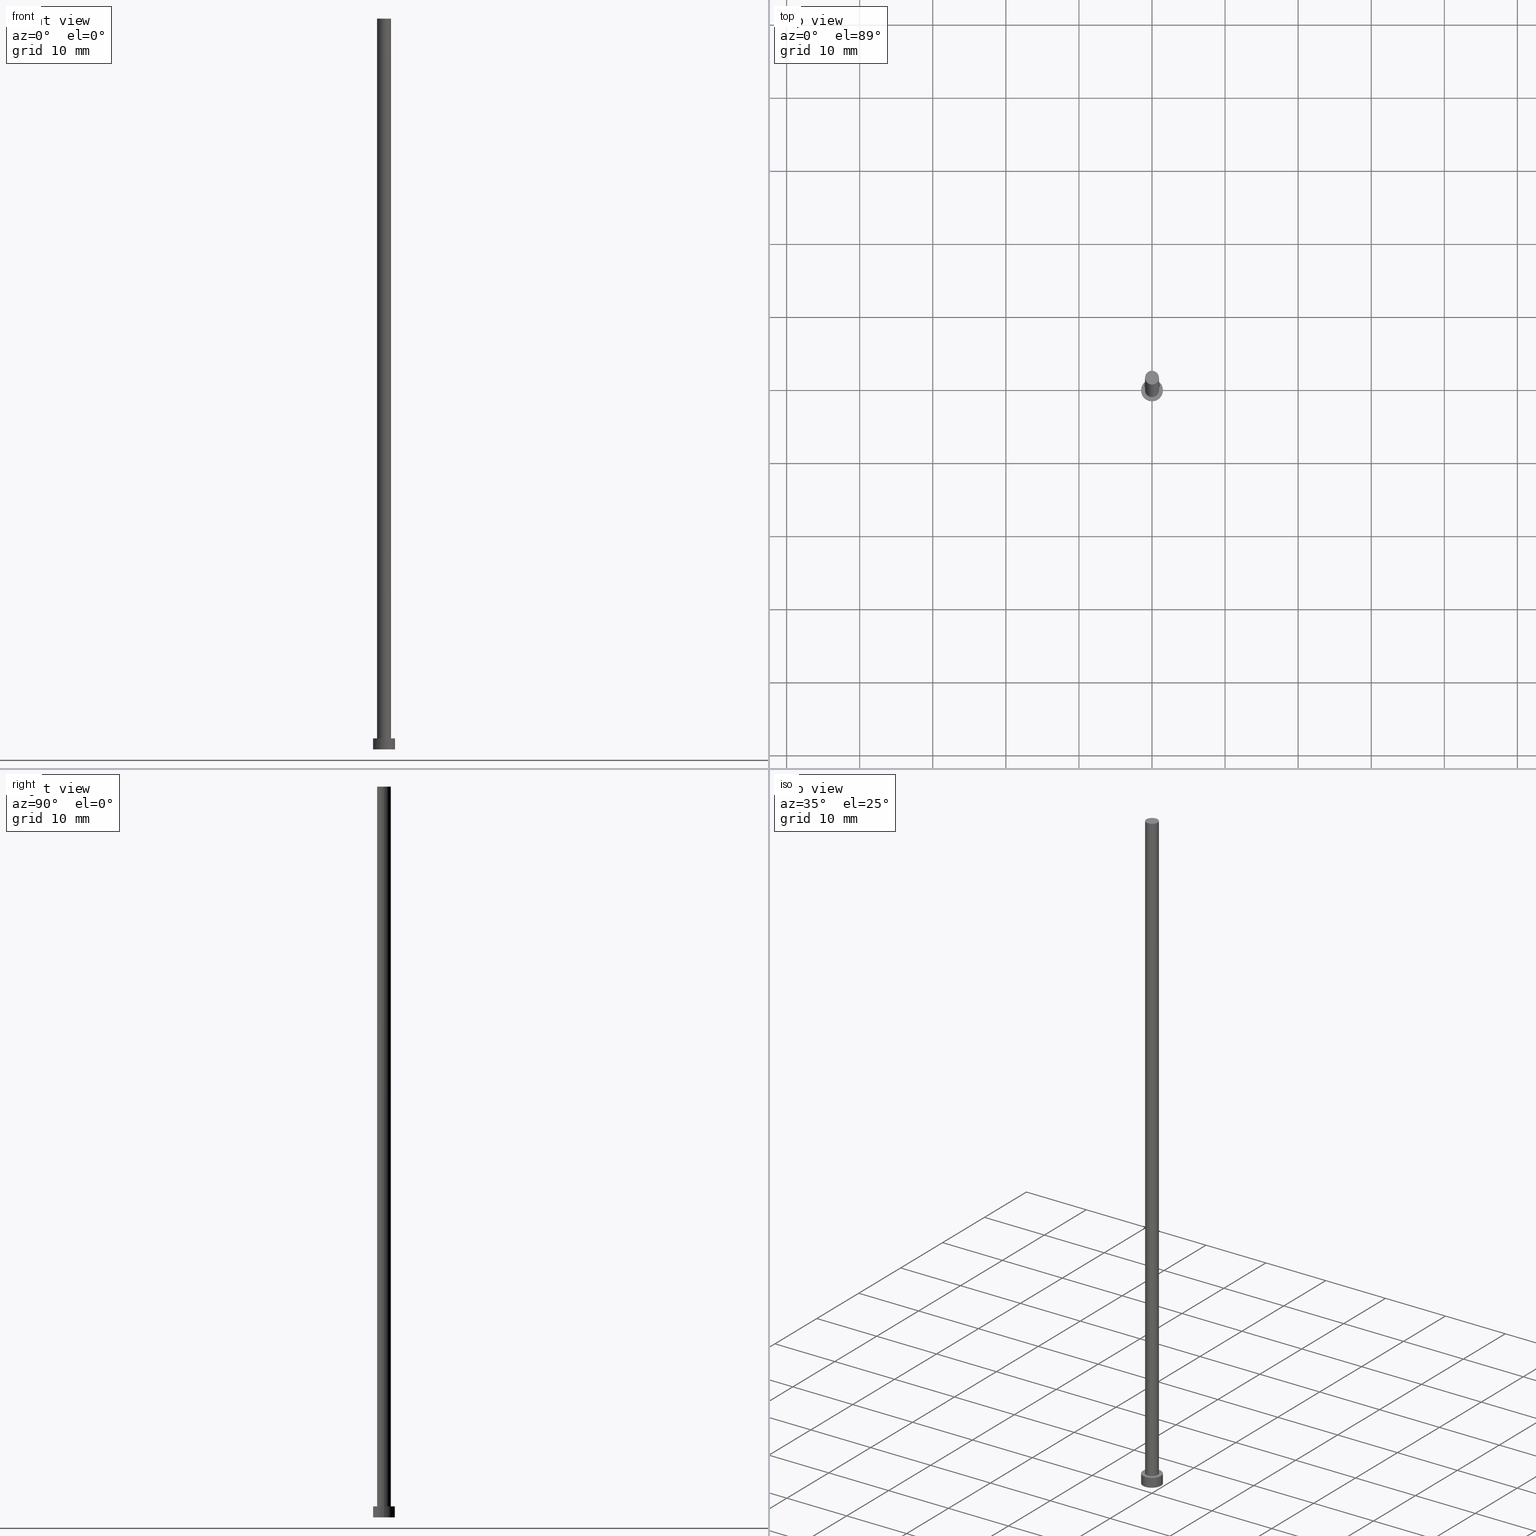
[diagram: canonical four-view strip — front | top / right | iso, engineering-drawing reading convention]
A machine part, canonical four-view strip (front | top / right | iso — engineering-drawing reading convention). The complete STEP part file that produces these views, byte-faithful:
ISO-10303-21;
HEADER;
FILE_DESCRIPTION (( 'STEP AP203' ),
    '1' );
FILE_NAME ('63f2.STEP',
    '2023-02-13T14:56:54',
    ( '' ),
    ( '' ),
    'SwSTEP 2.0',
    'SolidWorks 2019',
    '' );
FILE_SCHEMA (( 'CONFIG_CONTROL_DESIGN' ));
ENDSEC;

DATA;
#1 = SECURITY_CLASSIFICATION ( '', '', #156 ) ;
#2 = EDGE_CURVE ( 'NONE', #190, #58, #90, .T. ) ;
#3 = EDGE_CURVE ( 'NONE', #33, #172, #70, .T. ) ;
#4 = EDGE_CURVE ( 'NONE', #244, #190, #74, .T. ) ;
#5 = LOCAL_TIME ( 15, 56, 54.00000000000000000, #210 ) ;
#6 = AXIS2_PLACEMENT_3D ( 'NONE', #205, #211, #49 ) ;
#7 = CARTESIAN_POINT ( 'NONE',  ( -0.9499999999999999556, 0.000000000000000000, 1.500000000000000000 ) ) ;
#8 = ORIENTED_EDGE ( 'NONE', *, *, #3, .F. ) ;
#9 = EDGE_LOOP ( 'NONE', ( #77, #249, #36, #181 ) ) ;
#10 = APPROVAL_DATE_TIME ( #115, #110 ) ;
#11 = DIRECTION ( 'NONE',  ( -1.000000000000000000, 0.000000000000000000, 0.000000000000000000 ) ) ;
#12 = LOCAL_TIME ( 15, 56, 54.00000000000000000, #17 ) ;
#13 =( NAMED_UNIT ( * ) PLANE_ANGLE_UNIT ( ) SI_UNIT ( $, .RADIAN. ) );
#14 = DIRECTION ( 'NONE',  ( -0.000000000000000000, -0.000000000000000000, -1.000000000000000000 ) ) ;
#15 = ORIENTED_EDGE ( 'NONE', *, *, #2, .T. ) ;
#16 = FACE_OUTER_BOUND ( 'NONE', #9, .T. ) ;
#17 = COORDINATED_UNIVERSAL_TIME_OFFSET ( 1, 0, .AHEAD. ) ;
#18 = APPROVAL_ROLE ( '' ) ;
#19 = PLANE ( 'NONE',  #223 ) ;
#20 = VERTEX_POINT ( 'NONE', #7 ) ;
#21 = FACE_OUTER_BOUND ( 'NONE', #241, .T. ) ;
#22 = APPROVAL_STATUS ( 'not_yet_approved' ) ;
#23 = CALENDAR_DATE ( 2023, 13, 2 ) ;
#24 = COORDINATED_UNIVERSAL_TIME_OFFSET ( 1, 0, .AHEAD. ) ;
#25 = LINE ( 'NONE', #157, #30 ) ;
#26 = SHAPE_DEFINITION_REPRESENTATION ( #206, #54 ) ;
#27 = ORGANIZATION ( 'NEUR�EN�', 'NEUR�EN�', '' ) ;
#28 = DIRECTION ( 'NONE',  ( 0.000000000000000000, 0.000000000000000000, 1.000000000000000000 ) ) ;
#29 = ADVANCED_FACE ( 'NONE', ( #34 ), #97, .T. ) ;
#30 = VECTOR ( 'NONE', #175, 1000.000000000000000 ) ;
#31 = ADVANCED_FACE ( 'NONE', ( #116 ), #135, .T. ) ;
#32 = AXIS2_PLACEMENT_3D ( 'NONE', #89, #101, #85 ) ;
#33 = VERTEX_POINT ( 'NONE', #72 ) ;
#34 = FACE_OUTER_BOUND ( 'NONE', #153, .T. ) ;
#35 = PERSON_AND_ORGANIZATION_ROLE ( 'design_supplier' ) ;
#36 = ORIENTED_EDGE ( 'NONE', *, *, #162, .T. ) ;
#37 = DIRECTION ( 'NONE',  ( 1.000000000000000000, 0.000000000000000000, 0.000000000000000000 ) ) ;
#38 = DATE_AND_TIME ( #23, #229 ) ;
#39 = CIRCLE ( 'NONE', #240, 1.500000000000000222 ) ;
#40 = VERTEX_POINT ( 'NONE', #149 ) ;
#41 = DIRECTION ( 'NONE',  ( 0.000000000000000000, 0.000000000000000000, 1.000000000000000000 ) ) ;
#42 = CC_DESIGN_APPROVAL ( #46, ( #1 ) ) ;
#43 = ORIENTED_EDGE ( 'NONE', *, *, #59, .F. ) ;
#44 = APPROVAL_STATUS ( 'not_yet_approved' ) ;
#45 = DIRECTION ( 'NONE',  ( 1.000000000000000000, 0.000000000000000000, 0.000000000000000000 ) ) ;
#46 = APPROVAL ( #22, 'NEUR�EN�' ) ;
#47 = PERSON_AND_ORGANIZATION_ROLE ( 'design_owner' ) ;
#48 = DIRECTION ( 'NONE',  ( 1.000000000000000000, 0.000000000000000000, -0.000000000000000000 ) ) ;
#49 = DIRECTION ( 'NONE',  ( 1.000000000000000000, 0.000000000000000000, 0.000000000000000000 ) ) ;
#50 = APPROVAL_STATUS ( 'not_yet_approved' ) ;
#51 = EDGE_CURVE ( 'NONE', #190, #244, #235, .T. ) ;
#52 = DIRECTION ( 'NONE',  ( -0.000000000000000000, -0.000000000000000000, -1.000000000000000000 ) ) ;
#53 = CIRCLE ( 'NONE', #73, 1.500000000000000222 ) ;
#54 = ADVANCED_BREP_SHAPE_REPRESENTATION ( '63f2', ( #95, #140 ), #173 ) ;
#55 = EDGE_CURVE ( 'NONE', #20, #58, #151, .T. ) ;
#56 = AXIS2_PLACEMENT_3D ( 'NONE', #177, #230, #45 ) ;
#57 = ORIENTED_EDGE ( 'NONE', *, *, #51, .F. ) ;
#58 = VERTEX_POINT ( 'NONE', #120 ) ;
#59 = EDGE_CURVE ( 'NONE', #58, #20, #219, .T. ) ;
#60 = DIRECTION ( 'NONE',  ( 0.000000000000000000, 0.000000000000000000, 1.000000000000000000 ) ) ;
#61 = DATE_AND_TIME ( #80, #152 ) ;
#62 = CARTESIAN_POINT ( 'NONE',  ( 0.9499999999999999556, 1.163414459189985682E-16, 100.0000000000000000 ) ) ;
#63 = PERSON_AND_ORGANIZATION ( #204, #27 ) ;
#64 = CARTESIAN_POINT ( 'NONE',  ( 0.000000000000000000, 0.000000000000000000, 0.000000000000000000 ) ) ;
#65 = DIRECTION ( 'NONE',  ( 0.000000000000000000, 0.000000000000000000, 1.000000000000000000 ) ) ;
#66 = CC_DESIGN_PERSON_AND_ORGANIZATION_ASSIGNMENT ( #63, #47, ( #221 ) ) ;
#67 =( NAMED_UNIT ( * ) SI_UNIT ( $, .STERADIAN. ) SOLID_ANGLE_UNIT ( ) );
#68 = CARTESIAN_POINT ( 'NONE',  ( -1.500000000000000222, 0.000000000000000000, 1.500000000000000000 ) ) ;
#69 = AXIS2_PLACEMENT_3D ( 'NONE', #76, #192, #11 ) ;
#70 = LINE ( 'NONE', #213, #203 ) ;
#71 = CARTESIAN_POINT ( 'NONE',  ( 0.9499999999999999556, 1.163414459189985682E-16, 100.0000000000000000 ) ) ;
#72 = CARTESIAN_POINT ( 'NONE',  ( 1.500000000000000222, 1.836970198721030181E-16, 1.500000000000000000 ) ) ;
#73 = AXIS2_PLACEMENT_3D ( 'NONE', #117, #228, #195 ) ;
#74 = CIRCLE ( 'NONE', #91, 0.9499999999999999556 ) ;
#75 = APPLICATION_CONTEXT ( 'configuration controlled 3d designs of mechanical parts and assemblies' ) ;
#76 = CARTESIAN_POINT ( 'NONE',  ( 0.000000000000000000, 0.000000000000000000, 1.500000000000000000 ) ) ;
#77 = ORIENTED_EDGE ( 'NONE', *, *, #2, .F. ) ;
#78 = ORIENTED_EDGE ( 'NONE', *, *, #3, .T. ) ;
#79 = FACE_OUTER_BOUND ( 'NONE', #134, .T. ) ;
#80 = CALENDAR_DATE ( 2023, 13, 2 ) ;
#81 = ORIENTED_EDGE ( 'NONE', *, *, #150, .F. ) ;
#82 = DIRECTION ( 'NONE',  ( -0.000000000000000000, -0.000000000000000000, -1.000000000000000000 ) ) ;
#83 = LOCAL_TIME ( 15, 56, 54.00000000000000000, #24 ) ;
#84 = EDGE_CURVE ( 'NONE', #232, #172, #133, .T. ) ;
#85 = DIRECTION ( 'NONE',  ( 1.000000000000000000, 0.000000000000000000, 0.000000000000000000 ) ) ;
#86 = PERSON_AND_ORGANIZATION ( #204, #27 ) ;
#87 = DIRECTION ( 'NONE',  ( -0.000000000000000000, -0.000000000000000000, -1.000000000000000000 ) ) ;
#88 = APPLICATION_PROTOCOL_DEFINITION ( 'international standard', 'config_control_design', 1994, #238 ) ;
#89 = CARTESIAN_POINT ( 'NONE',  ( 0.000000000000000000, 0.000000000000000000, 1.500000000000000000 ) ) ;
#90 = LINE ( 'NONE', #71, #174 ) ;
#91 = AXIS2_PLACEMENT_3D ( 'NONE', #234, #148, #217 ) ;
#92 = APPROVAL_PERSON_ORGANIZATION ( #161, #110, #141 ) ;
#93 = CALENDAR_DATE ( 2023, 13, 2 ) ;
#94 = ORIENTED_EDGE ( 'NONE', *, *, #169, .F. ) ;
#95 = MANIFOLD_SOLID_BREP ( 'P�idat vysunut�m3', #158 ) ;
#96 = PRODUCT_DEFINITION_FORMATION_WITH_SPECIFIED_SOURCE ( 'LIBOVOLN�', '', #221, .NOT_KNOWN. ) ;
#97 = CYLINDRICAL_SURFACE ( 'NONE', #250, 0.9499999999999999556 ) ;
#98 = EDGE_LOOP ( 'NONE', ( #166, #43 ) ) ;
#99 = PERSON_AND_ORGANIZATION_ROLE ( 'classification_officer' ) ;
#100 = ORIENTED_EDGE ( 'NONE', *, *, #162, .F. ) ;
#101 = DIRECTION ( 'NONE',  ( 0.000000000000000000, 0.000000000000000000, 1.000000000000000000 ) ) ;
#102 = ADVANCED_FACE ( 'NONE', ( #226 ), #19, .F. ) ;
#103 = CARTESIAN_POINT ( 'NONE',  ( 0.000000000000000000, 0.000000000000000000, 100.0000000000000000 ) ) ;
#104 = FACE_OUTER_BOUND ( 'NONE', #136, .T. ) ;
#105 = AXIS2_PLACEMENT_3D ( 'NONE', #168, #28, #170 ) ;
#106 = DIRECTION ( 'NONE',  ( 0.000000000000000000, 0.000000000000000000, 1.000000000000000000 ) ) ;
#107 = ADVANCED_FACE ( 'NONE', ( #104 ), #202, .T. ) ;
#108 = PERSON_AND_ORGANIZATION_ROLE ( 'creator' ) ;
#109 = ADVANCED_FACE ( 'NONE', ( #214, #79 ), #231, .T. ) ;
#110 = APPROVAL ( #44, 'NEUR�EN�' ) ;
#111 = AXIS2_PLACEMENT_3D ( 'NONE', #233, #106, #209 ) ;
#112 = CC_DESIGN_APPROVAL ( #167, ( #96 ) ) ;
#113 = CC_DESIGN_PERSON_AND_ORGANIZATION_ASSIGNMENT ( #86, #160, ( #96 ) ) ;
#114 = ORIENTED_EDGE ( 'NONE', *, *, #255, .F. ) ;
#115 = DATE_AND_TIME ( #121, #5 ) ;
#116 = FACE_OUTER_BOUND ( 'NONE', #132, .T. ) ;
#117 = CARTESIAN_POINT ( 'NONE',  ( 0.000000000000000000, 0.000000000000000000, 1.500000000000000000 ) ) ;
#118 = ORIENTED_EDGE ( 'NONE', *, *, #165, .T. ) ;
#119 = APPROVAL_PERSON_ORGANIZATION ( #254, #46, #184 ) ;
#120 = CARTESIAN_POINT ( 'NONE',  ( 0.9499999999999999556, 1.163414459189985682E-16, 1.500000000000000000 ) ) ;
#121 = CALENDAR_DATE ( 2023, 13, 2 ) ;
#122 = CARTESIAN_POINT ( 'NONE',  ( 0.000000000000000000, 0.000000000000000000, 1.500000000000000000 ) ) ;
#123 = CARTESIAN_POINT ( 'NONE',  ( 0.000000000000000000, 0.000000000000000000, 0.000000000000000000 ) ) ;
#124 = APPROVAL_DATE_TIME ( #38, #167 ) ;
#125 = ADVANCED_FACE ( 'NONE', ( #21 ), #145, .T. ) ;
#126 = DESIGN_CONTEXT ( 'detailed design', #75, 'design' ) ;
#127 = PRODUCT_RELATED_PRODUCT_CATEGORY ( 'detail', '', ( #221 ) ) ;
#128 = DIRECTION ( 'NONE',  ( -1.000000000000000000, 0.000000000000000000, 0.000000000000000000 ) ) ;
#129 = UNCERTAINTY_MEASURE_WITH_UNIT (LENGTH_MEASURE( 1.000000000000000082E-05 ), #144, 'distance_accuracy_value', 'NONE');
#130 = AXIS2_PLACEMENT_3D ( 'NONE', #147, #65, #183 ) ;
#131 = AXIS2_PLACEMENT_3D ( 'NONE', #137, #201, #245 ) ;
#132 = EDGE_LOOP ( 'NONE', ( #94, #78, #118, #81 ) ) ;
#133 = CIRCLE ( 'NONE', #56, 1.500000000000000222 ) ;
#134 = EDGE_LOOP ( 'NONE', ( #178, #191 ) ) ;
#135 = CYLINDRICAL_SURFACE ( 'NONE', #69, 1.500000000000000222 ) ;
#136 = EDGE_LOOP ( 'NONE', ( #8, #114, #197, #208 ) ) ;
#137 = CARTESIAN_POINT ( 'NONE',  ( 0.000000000000000000, 0.000000000000000000, 1.500000000000000000 ) ) ;
#138 = ORIENTED_EDGE ( 'NONE', *, *, #59, .T. ) ;
#139 = CARTESIAN_POINT ( 'NONE',  ( -1.500000000000000222, 0.000000000000000000, 0.000000000000000000 ) ) ;
#140 = AXIS2_PLACEMENT_3D ( 'NONE', #123, #41, #179 ) ;
#141 = APPROVAL_ROLE ( '' ) ;
#142 = DIRECTION ( 'NONE',  ( -1.000000000000000000, 0.000000000000000000, 0.000000000000000000 ) ) ;
#143 = CALENDAR_DATE ( 2023, 13, 2 ) ;
#144 =( LENGTH_UNIT ( ) NAMED_UNIT ( * ) SI_UNIT ( .MILLI., .METRE. ) );
#145 = PLANE ( 'NONE',  #111 ) ;
#146 = DATE_TIME_ROLE ( 'classification_date' ) ;
#147 = CARTESIAN_POINT ( 'NONE',  ( 0.000000000000000000, 0.000000000000000000, 1.500000000000000000 ) ) ;
#148 = DIRECTION ( 'NONE',  ( 0.000000000000000000, 0.000000000000000000, 1.000000000000000000 ) ) ;
#149 = CARTESIAN_POINT ( 'NONE',  ( -1.500000000000000222, 0.000000000000000000, 1.500000000000000000 ) ) ;
#150 = EDGE_CURVE ( 'NONE', #40, #232, #252, .T. ) ;
#151 = CIRCLE ( 'NONE', #32, 0.9499999999999999556 ) ;
#152 = LOCAL_TIME ( 15, 56, 54.00000000000000000, #225 ) ;
#153 = EDGE_LOOP ( 'NONE', ( #57, #15, #138, #100 ) ) ;
#154 = PERSON_AND_ORGANIZATION ( #204, #27 ) ;
#155 = CARTESIAN_POINT ( 'NONE',  ( 0.000000000000000000, 0.000000000000000000, 0.000000000000000000 ) ) ;
#156 = SECURITY_CLASSIFICATION_LEVEL ( 'unclassified' ) ;
#157 = CARTESIAN_POINT ( 'NONE',  ( -0.9499999999999999556, 0.000000000000000000, 100.0000000000000000 ) ) ;
#158 = CLOSED_SHELL ( 'NONE', ( #29, #31, #107, #109, #102, #253, #125 ) ) ;
#159 = DIRECTION ( 'NONE',  ( 0.000000000000000000, 0.000000000000000000, 1.000000000000000000 ) ) ;
#160 = PERSON_AND_ORGANIZATION_ROLE ( 'creator' ) ;
#161 = PERSON_AND_ORGANIZATION ( #204, #27 ) ;
#162 = EDGE_CURVE ( 'NONE', #244, #20, #25, .T. ) ;
#163 = CC_DESIGN_PERSON_AND_ORGANIZATION_ASSIGNMENT ( #243, #99, ( #1 ) ) ;
#164 = DATE_TIME_ROLE ( 'creation_date' ) ;
#165 = EDGE_CURVE ( 'NONE', #172, #232, #39, .T. ) ;
#166 = ORIENTED_EDGE ( 'NONE', *, *, #55, .F. ) ;
#167 = APPROVAL ( #50, 'NEUR�EN�' ) ;
#168 = CARTESIAN_POINT ( 'NONE',  ( 0.000000000000000000, 0.000000000000000000, 1.500000000000000000 ) ) ;
#169 = EDGE_CURVE ( 'NONE', #33, #40, #53, .T. ) ;
#170 = DIRECTION ( 'NONE',  ( 1.000000000000000000, 0.000000000000000000, 0.000000000000000000 ) ) ;
#171 = ORIENTED_EDGE ( 'NONE', *, *, #165, .F. ) ;
#172 = VERTEX_POINT ( 'NONE', #248 ) ;
#173 =( GEOMETRIC_REPRESENTATION_CONTEXT ( 3 ) GLOBAL_UNCERTAINTY_ASSIGNED_CONTEXT ( ( #129 ) ) GLOBAL_UNIT_ASSIGNED_CONTEXT ( ( #144, #13, #67 ) ) REPRESENTATION_CONTEXT ( 'NONE', 'WORKASPACE' ) );
#174 = VECTOR ( 'NONE', #87, 1000.000000000000000 ) ;
#175 = DIRECTION ( 'NONE',  ( -0.000000000000000000, -0.000000000000000000, -1.000000000000000000 ) ) ;
#176 = EDGE_LOOP ( 'NONE', ( #199, #171 ) ) ;
#177 = CARTESIAN_POINT ( 'NONE',  ( 0.000000000000000000, 0.000000000000000000, 0.000000000000000000 ) ) ;
#178 = ORIENTED_EDGE ( 'NONE', *, *, #255, .T. ) ;
#179 = DIRECTION ( 'NONE',  ( 1.000000000000000000, 0.000000000000000000, 0.000000000000000000 ) ) ;
#180 = CYLINDRICAL_SURFACE ( 'NONE', #189, 0.9499999999999999556 ) ;
#181 = ORIENTED_EDGE ( 'NONE', *, *, #55, .T. ) ;
#182 = DIRECTION ( 'NONE',  ( 0.000000000000000000, 0.000000000000000000, 1.000000000000000000 ) ) ;
#183 = DIRECTION ( 'NONE',  ( 1.000000000000000000, 0.000000000000000000, -0.000000000000000000 ) ) ;
#184 = APPROVAL_ROLE ( '' ) ;
#185 = DATE_AND_TIME ( #93, #83 ) ;
#186 = CIRCLE ( 'NONE', #105, 1.500000000000000222 ) ;
#187 = CC_DESIGN_SECURITY_CLASSIFICATION ( #1, ( #96 ) ) ;
#188 = CC_DESIGN_DATE_AND_TIME_ASSIGNMENT ( #212, #146, ( #1 ) ) ;
#189 = AXIS2_PLACEMENT_3D ( 'NONE', #103, #82, #142 ) ;
#190 = VERTEX_POINT ( 'NONE', #62 ) ;
#191 = ORIENTED_EDGE ( 'NONE', *, *, #169, .T. ) ;
#192 = DIRECTION ( 'NONE',  ( -0.000000000000000000, -0.000000000000000000, -1.000000000000000000 ) ) ;
#193 = PERSON_AND_ORGANIZATION ( #204, #27 ) ;
#194 = VECTOR ( 'NONE', #14, 1000.000000000000000 ) ;
#195 = DIRECTION ( 'NONE',  ( 1.000000000000000000, 0.000000000000000000, 0.000000000000000000 ) ) ;
#196 = APPROVAL_DATE_TIME ( #61, #46 ) ;
#197 = ORIENTED_EDGE ( 'NONE', *, *, #150, .T. ) ;
#198 = CARTESIAN_POINT ( 'NONE',  ( -0.9499999999999999556, 0.000000000000000000, 100.0000000000000000 ) ) ;
#199 = ORIENTED_EDGE ( 'NONE', *, *, #84, .F. ) ;
#200 = APPLICATION_PROTOCOL_DEFINITION ( 'international standard', 'config_control_design', 1994, #75 ) ;
#201 = DIRECTION ( 'NONE',  ( -0.000000000000000000, -0.000000000000000000, -1.000000000000000000 ) ) ;
#202 = CYLINDRICAL_SURFACE ( 'NONE', #131, 1.500000000000000222 ) ;
#203 = VECTOR ( 'NONE', #52, 1000.000000000000000 ) ;
#204 = PERSON ( 'NEUR�EN�', 'NEUR�EN�', 'NEUR�EN�', ('NEUR�EN�'), ('NEUR�EN�'), ('NEUR�EN�') ) ;
#205 = CARTESIAN_POINT ( 'NONE',  ( 0.000000000000000000, 0.000000000000000000, 100.0000000000000000 ) ) ;
#206 = PRODUCT_DEFINITION_SHAPE ( 'NONE', 'NONE',  #237 ) ;
#207 = CC_DESIGN_PERSON_AND_ORGANIZATION_ASSIGNMENT ( #193, #35, ( #96 ) ) ;
#208 = ORIENTED_EDGE ( 'NONE', *, *, #84, .T. ) ;
#209 = DIRECTION ( 'NONE',  ( 1.000000000000000000, 0.000000000000000000, -0.000000000000000000 ) ) ;
#210 = COORDINATED_UNIVERSAL_TIME_OFFSET ( 1, 0, .AHEAD. ) ;
#211 = DIRECTION ( 'NONE',  ( 0.000000000000000000, 0.000000000000000000, 1.000000000000000000 ) ) ;
#212 = DATE_AND_TIME ( #143, #12 ) ;
#213 = CARTESIAN_POINT ( 'NONE',  ( 1.500000000000000222, 1.836970198721030181E-16, 1.500000000000000000 ) ) ;
#214 = FACE_BOUND ( 'NONE', #98, .T. ) ;
#215 = PERSON_AND_ORGANIZATION ( #204, #27 ) ;
#216 = APPROVAL_PERSON_ORGANIZATION ( #215, #167, #18 ) ;
#217 = DIRECTION ( 'NONE',  ( 1.000000000000000000, 0.000000000000000000, 0.000000000000000000 ) ) ;
#218 = CC_DESIGN_PERSON_AND_ORGANIZATION_ASSIGNMENT ( #154, #108, ( #237 ) ) ;
#219 = CIRCLE ( 'NONE', #236, 0.9499999999999999556 ) ;
#220 = CC_DESIGN_APPROVAL ( #110, ( #237 ) ) ;
#221 = PRODUCT ( '63f2', '63f2', '', ( #247 ) ) ;
#222 = ORIENTED_EDGE ( 'NONE', *, *, #51, .T. ) ;
#223 = AXIS2_PLACEMENT_3D ( 'NONE', #64, #182, #48 ) ;
#224 = CARTESIAN_POINT ( 'NONE',  ( 0.000000000000000000, 0.000000000000000000, 100.0000000000000000 ) ) ;
#225 = COORDINATED_UNIVERSAL_TIME_OFFSET ( 1, 0, .AHEAD. ) ;
#226 = FACE_OUTER_BOUND ( 'NONE', #176, .T. ) ;
#227 = CC_DESIGN_DATE_AND_TIME_ASSIGNMENT ( #185, #164, ( #237 ) ) ;
#228 = DIRECTION ( 'NONE',  ( 0.000000000000000000, 0.000000000000000000, 1.000000000000000000 ) ) ;
#229 = LOCAL_TIME ( 15, 56, 54.00000000000000000, #251 ) ;
#230 = DIRECTION ( 'NONE',  ( 0.000000000000000000, 0.000000000000000000, 1.000000000000000000 ) ) ;
#231 = PLANE ( 'NONE',  #130 ) ;
#232 = VERTEX_POINT ( 'NONE', #139 ) ;
#233 = CARTESIAN_POINT ( 'NONE',  ( 0.000000000000000000, 0.000000000000000000, 100.0000000000000000 ) ) ;
#234 = CARTESIAN_POINT ( 'NONE',  ( 0.000000000000000000, 0.000000000000000000, 100.0000000000000000 ) ) ;
#235 = CIRCLE ( 'NONE', #6, 0.9499999999999999556 ) ;
#236 = AXIS2_PLACEMENT_3D ( 'NONE', #122, #159, #242 ) ;
#237 = PRODUCT_DEFINITION ( 'NEZN�M�', '', #96, #126 ) ;
#238 = APPLICATION_CONTEXT ( 'configuration controlled 3d designs of mechanical parts and assemblies' ) ;
#239 = DIRECTION ( 'NONE',  ( -0.000000000000000000, -0.000000000000000000, -1.000000000000000000 ) ) ;
#240 = AXIS2_PLACEMENT_3D ( 'NONE', #155, #60, #37 ) ;
#241 = EDGE_LOOP ( 'NONE', ( #246, #222 ) ) ;
#242 = DIRECTION ( 'NONE',  ( 1.000000000000000000, 0.000000000000000000, 0.000000000000000000 ) ) ;
#243 = PERSON_AND_ORGANIZATION ( #204, #27 ) ;
#244 = VERTEX_POINT ( 'NONE', #198 ) ;
#245 = DIRECTION ( 'NONE',  ( -1.000000000000000000, 0.000000000000000000, 0.000000000000000000 ) ) ;
#246 = ORIENTED_EDGE ( 'NONE', *, *, #4, .T. ) ;
#247 = MECHANICAL_CONTEXT ( 'NONE', #238, 'mechanical' ) ;
#248 = CARTESIAN_POINT ( 'NONE',  ( 1.500000000000000222, 1.836970198721030181E-16, 0.000000000000000000 ) ) ;
#249 = ORIENTED_EDGE ( 'NONE', *, *, #4, .F. ) ;
#250 = AXIS2_PLACEMENT_3D ( 'NONE', #224, #239, #128 ) ;
#251 = COORDINATED_UNIVERSAL_TIME_OFFSET ( 1, 0, .AHEAD. ) ;
#252 = LINE ( 'NONE', #68, #194 ) ;
#253 = ADVANCED_FACE ( 'NONE', ( #16 ), #180, .T. ) ;
#254 = PERSON_AND_ORGANIZATION ( #204, #27 ) ;
#255 = EDGE_CURVE ( 'NONE', #40, #33, #186, .T. ) ;
ENDSEC;
END-ISO-10303-21;
